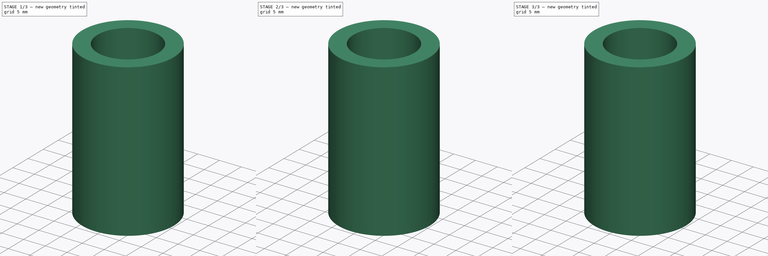
[diagram: build sequence overview — one tinted view per stage of 3, left to right]
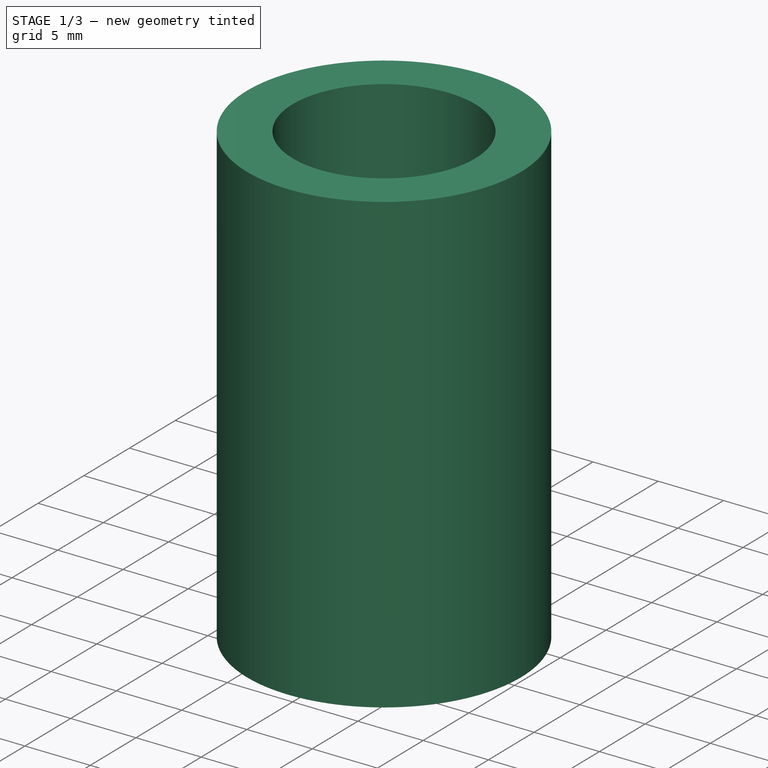
[diagram: stage 1 of 3 — iso view after this stage's code; geometry added in this stage tinted green]
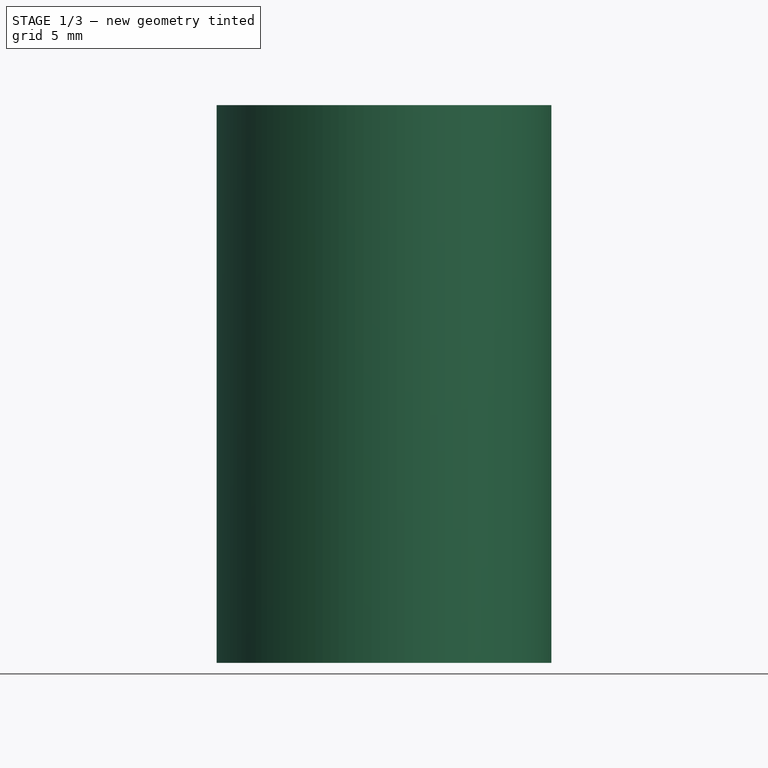
[diagram: stage 1 of 3 — front view after this stage's code; geometry added in this stage tinted green]
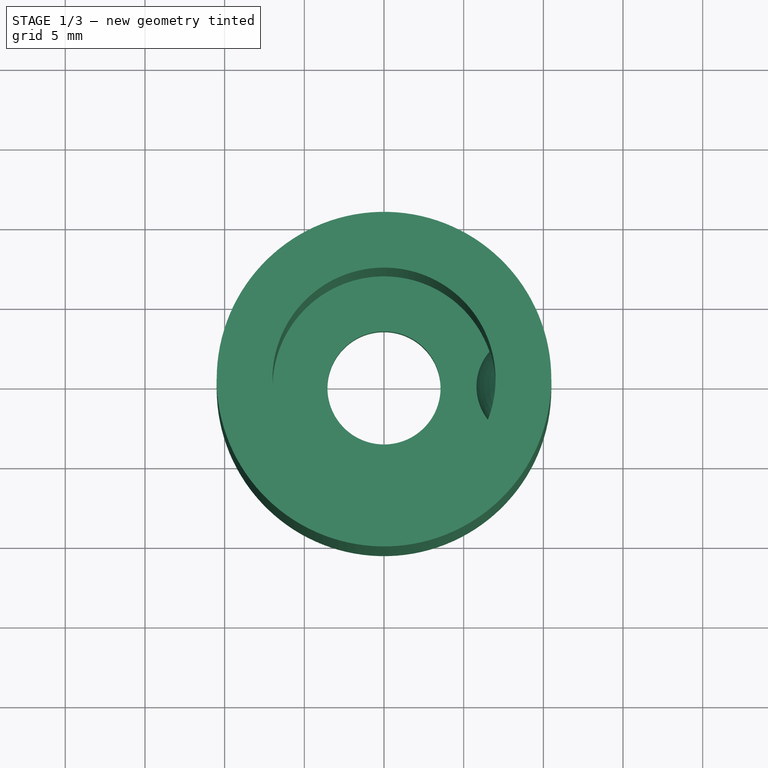
[diagram: stage 1 of 3 — top view after this stage's code; geometry added in this stage tinted green]
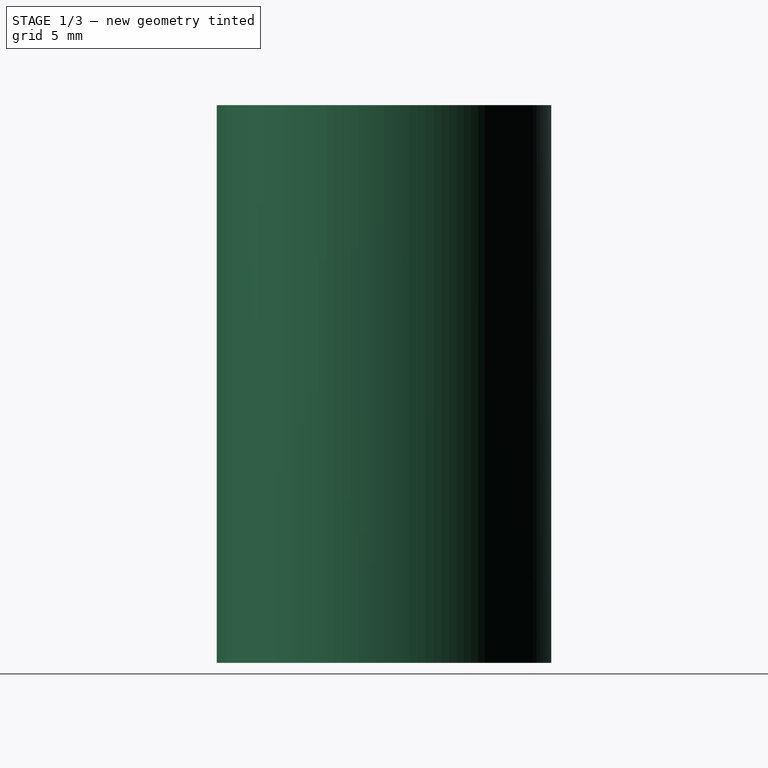
[diagram: stage 1 of 3 — right view after this stage's code; geometry added in this stage tinted green]
FCSTD DOCUMENT  (FreeCAD 0.19R)
Label: Post_sleeve_base
License: All rights reserved
LicenseURL: http://en.wikipedia.org/wiki/All_rights_reserved
objects: PartDesign::Revolution×7, PartDesign::Body×7, Sketcher::SketchObject×4, PartDesign::Hole×1
note: 27 computed .brp shape members not serialized (recipe doc carries the construction recipe); baked Part::Feature solids carry a one-line shape summary decoded from their .brp

FEATURE [Sketcher::SketchObject] Sketch  label="sleeve_body_sketch"
  FullyConstrained = true
  MapMode = 5
  Placement = pos=(0,0,0) rot=(1,0,0;1.5708rad)
  Support = -> [XZ_Plane]
  sketch-geometry (6):
    g0: LineSegment StartX=0 StartY=0 StartZ=0 EndX=10.5 EndY=0 EndZ=0
    g1: LineSegment StartX=10.5 StartY=0 StartZ=0 EndX=10.5 EndY=35 EndZ=0
    g2: LineSegment StartX=10.5 StartY=35 StartZ=0 EndX=7 EndY=35 EndZ=0
    g3: LineSegment StartX=7 StartY=35 StartZ=0 EndX=7 EndY=3.5 EndZ=0
    g4: LineSegment StartX=7 StartY=3.5 StartZ=0 EndX=0 EndY=3.5 EndZ=0
    g5: LineSegment StartX=0 StartY=3.5 StartZ=0 EndX=0 EndY=0 EndZ=0
  constraints (17):
    c: Coincident(g-1,g0)
    c: PointOnObject(g0,g-1)
    c: Coincident(g0,g1)
    c: Vertical(g1)
    c: Coincident(g1,g2)
    c: Horizontal(g2)
    c: Coincident(g2,g3)
    c: Vertical(g3)
    c: Coincident(g3,g4)
    c: Horizontal(g4)
    c: Coincident(g4,g5)
    c: Coincident(g5,g0)
    c: Vertical(g5)
    c: Distance(g5) = 3.5
    c: Distance(g4) = 7
    c: Distance(g2) = 3.5
    c: Distance(g1) = 35
FEATURE [PartDesign::Revolution] Revolution  label="sleeve_body"
  Angle = 360
  Axis = (-3e-16,3e-16,1)
  Base = (0,0,0)
  Placement = pos=(0,0,0) rot=(1,0,0;1.5708rad)
  Profile = -> Sketch
  ReferenceAxis = -> Z_Axis
  Reversed = true
FEATURE [PartDesign::Body] Body005  label="touch_point_11"
  Group = -> [Revolution005]
  Origin = -> Origin005
  Placement = pos=(0,0,22.4) rot=(0,0,1;2.0944rad)
  Tip = -> Revolution005
FEATURE [PartDesign::Revolution] Revolution006  label="touch_point005"
  Angle = 120
  Axis = (0,-1.8e-15,7.97846)
  Base = (9.13913,0,0)
  Midplane = true
  Placement = pos=(0,0,0) rot=(1,0,0;1.5708rad)
  Profile = -> Sketch003
  ReferenceAxis = -> Sketch003 [Axis1]
FEATURE [PartDesign::Body] Body006  label="touch_point_12"
  Group = -> [Revolution006]
  Origin = -> Origin006
  Placement = pos=(0,0,22.4) rot=(0,0,1;4.18879rad)
  Tip = -> Revolution006
FEATURE [Sketcher::SketchObject] Sketch004  label="1on4_hole_sketch"
  FullyConstrained = true
  MapMode = 5
  Support = -> [XY_Plane]
  sketch-geometry (1):
    g0: Circle CenterX=0 CenterY=0 CenterZ=0 NormalX=0 NormalY=0 NormalZ=1 AngleXU=0 Radius=1
  constraints (2):
    c: Coincident(g0,g-1)
    c: Radius(g0) = 1
FEATURE [PartDesign::Hole] Hole  label="1on4_hole"
  BaseFeature = -> Revolution
  Depth = 25
  DepthType = 1
  Diameter = 7.1
  DrillForDepth = false
  DrillPoint = 1
  DrillPointAngle = 118
  HoleCutCountersinkAngle = 90
  HoleCutCustomValues = false
  HoleCutDepth = 0
  HoleCutDiameter = 0
  HoleCutType = 0
  ModelActualThread = false
  Placement = pos=(0,0,0) rot=(1,0,0;1.5708rad)
  Profile = -> Sketch004
  Reversed = true
  Tapered = false
  TaperedAngle = 90
  ThreadAngle = 0
  ThreadClass = 0
  ThreadCutOffInner = 0
  ThreadCutOffOuter = 0
  ThreadDirection = 0
  ThreadFit = 0
  ThreadPitch = 0
  ThreadSize = 10
  ThreadType = 4
  Threaded = false
FEATURE [PartDesign::Body] Body  label="sleeve"
  Group = -> [Sketch,Revolution,Sketch004,Hole]
  Origin = -> Origin
  Tip = -> Hole
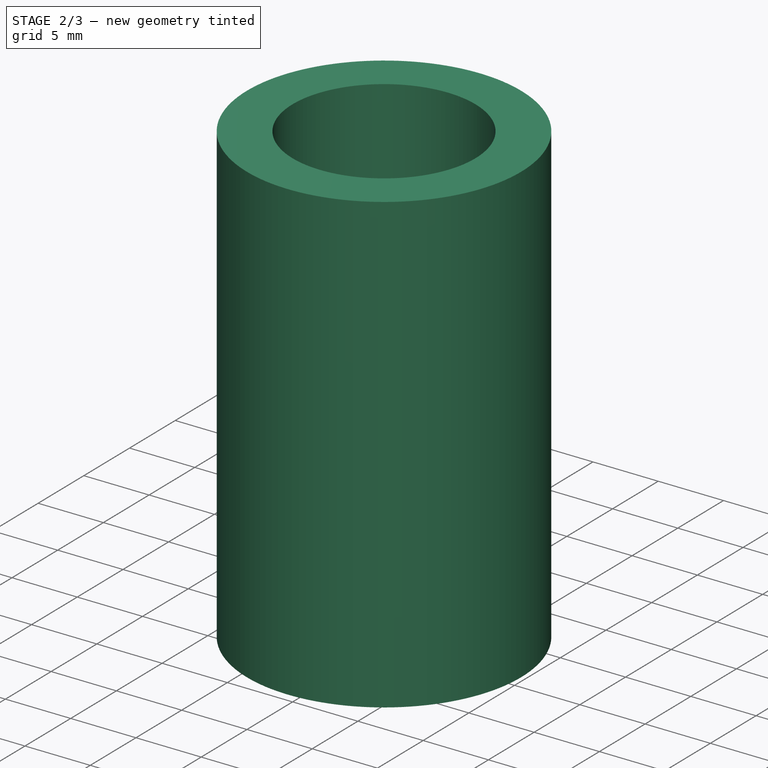
[diagram: stage 2 of 3 — iso view after this stage's code; geometry added in this stage tinted green]
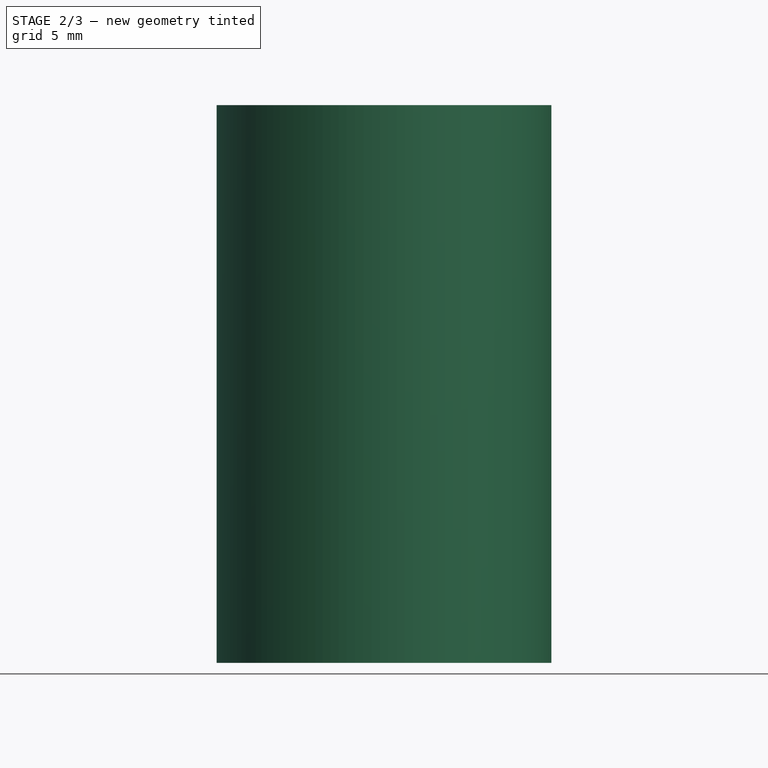
[diagram: stage 2 of 3 — front view after this stage's code; geometry added in this stage tinted green]
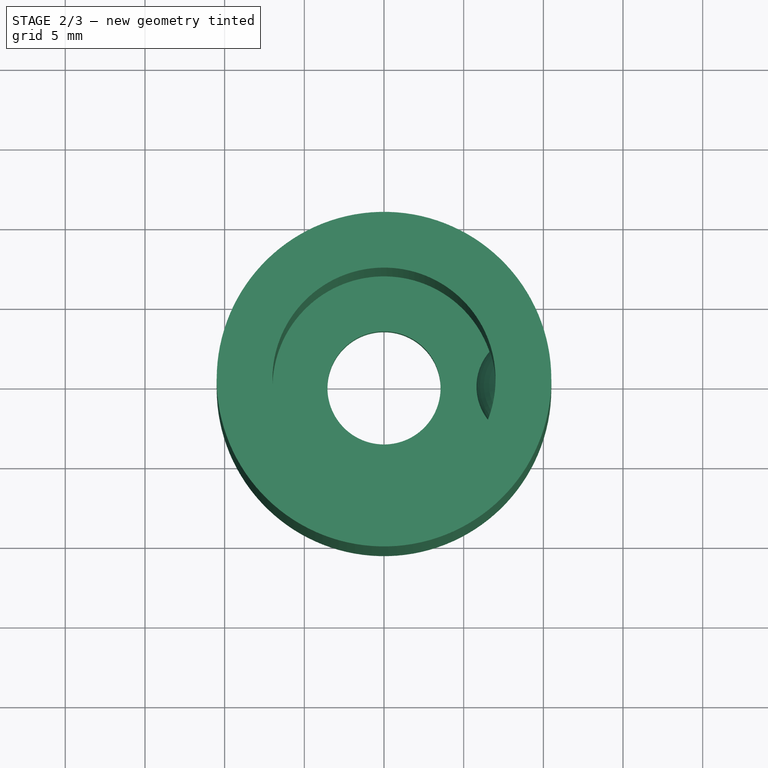
[diagram: stage 2 of 3 — top view after this stage's code; geometry added in this stage tinted green]
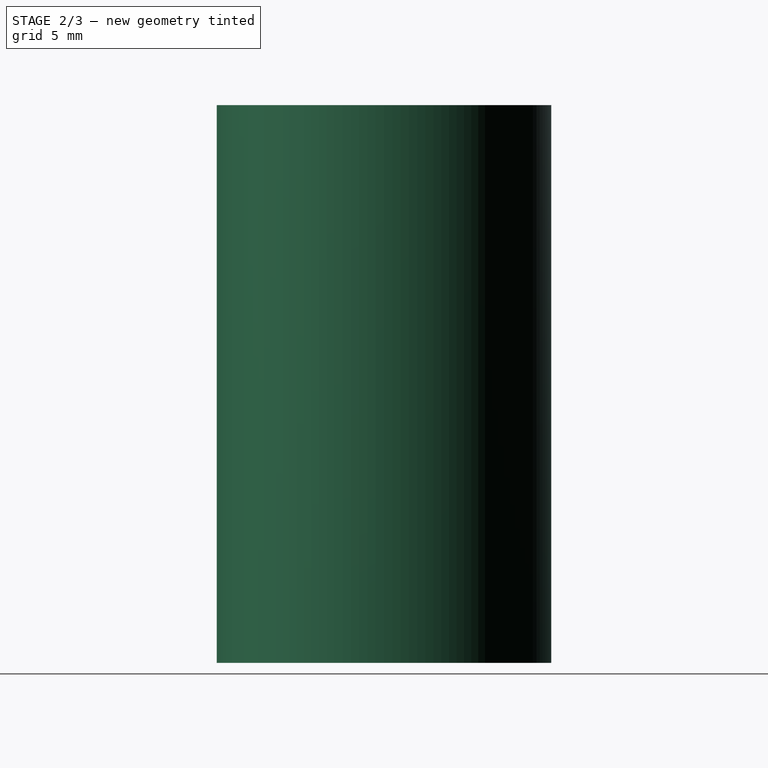
[diagram: stage 2 of 3 — right view after this stage's code; geometry added in this stage tinted green]
FEATURE [PartDesign::Body] Body003  label="touch_point_02"
  Group = -> [Revolution003]
  Origin = -> Origin003
  Placement = pos=(0,0,0) rot=(0,0,1;4.18879rad)
  Tip = -> Revolution003
FEATURE [PartDesign::Revolution] Revolution004  label="touch_point003"
  Angle = 120
  Axis = (0,-1.8e-15,7.97846)
  Base = (9.13913,0,0)
  Midplane = true
  Placement = pos=(0,0,0) rot=(1,0,0;1.5708rad)
  Profile = -> Sketch003
  ReferenceAxis = -> Sketch003 [Axis1]
FEATURE [PartDesign::Body] Body004  label="touch_point_10"
  Group = -> [Revolution004]
  Origin = -> Origin004
  Placement = pos=(0,0,22.4) rot=(0,0,1;0rad)
  Tip = -> Revolution004
FEATURE [PartDesign::Revolution] Revolution005  label="touch_point004"
  Angle = 120
  Axis = (0,-1.8e-15,7.97846)
  Base = (9.13913,0,0)
  Midplane = true
  Placement = pos=(0,0,0) rot=(1,0,0;1.5708rad)
  Profile = -> Sketch003
  ReferenceAxis = -> Sketch003 [Axis1]
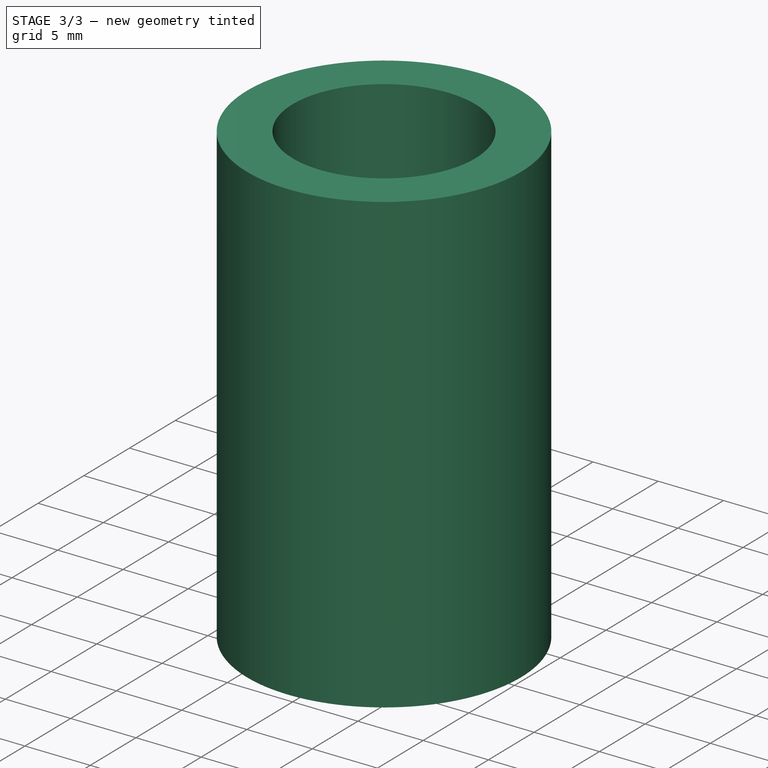
[diagram: stage 3 of 3 — iso view after this stage's code; geometry added in this stage tinted green]
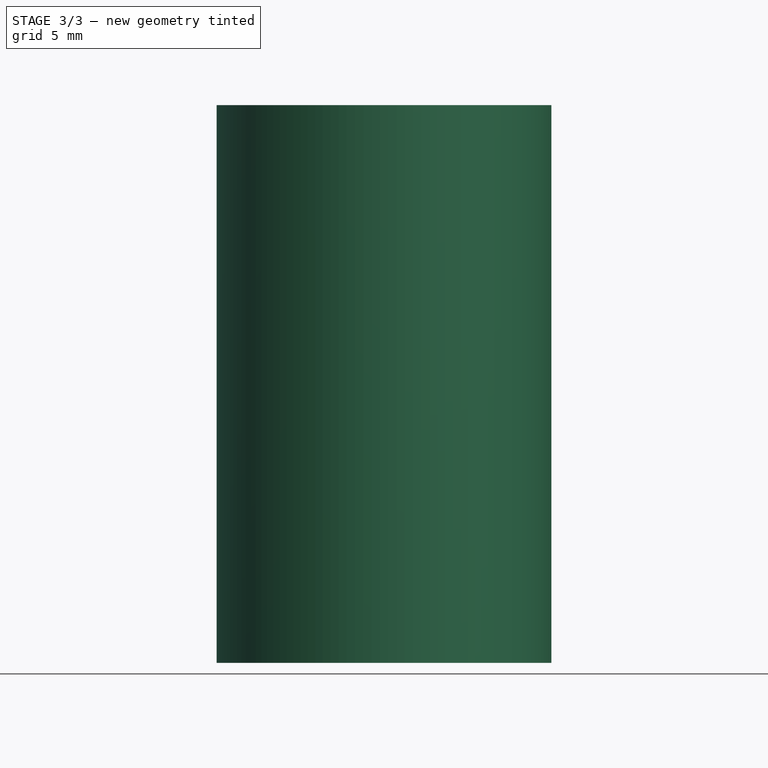
[diagram: stage 3 of 3 — front view after this stage's code; geometry added in this stage tinted green]
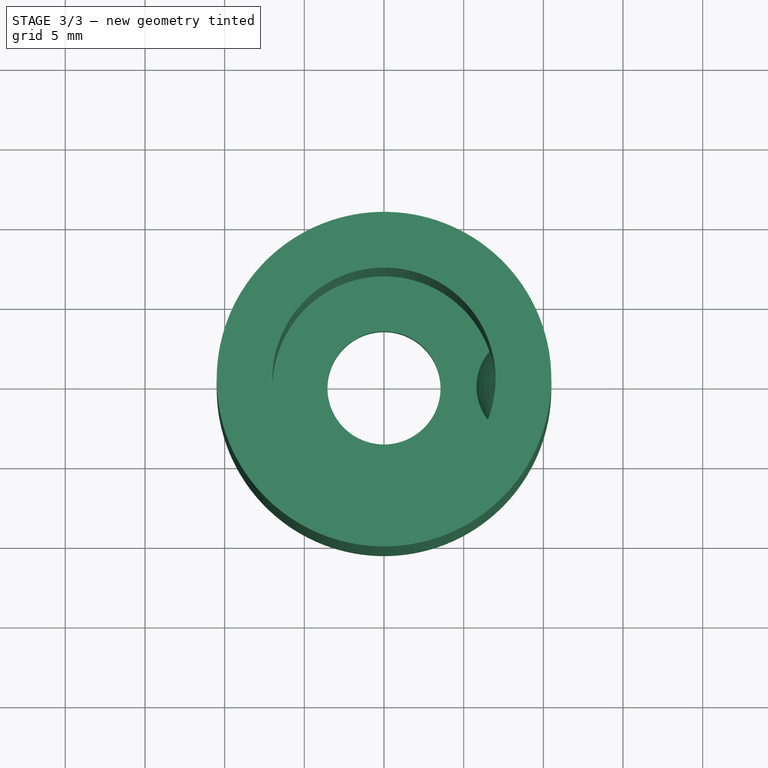
[diagram: stage 3 of 3 — top view after this stage's code; geometry added in this stage tinted green]
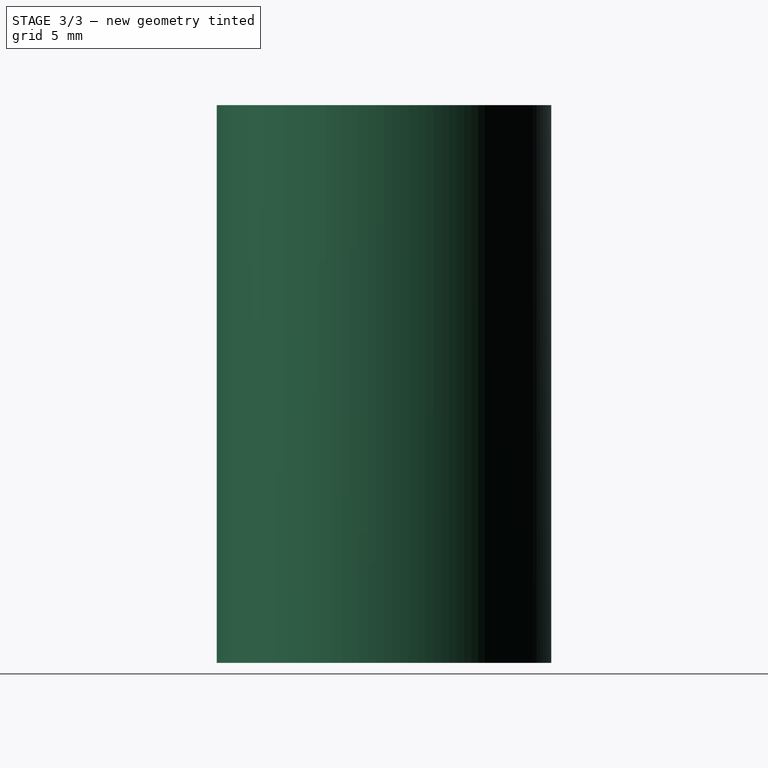
[diagram: stage 3 of 3 — right view after this stage's code; geometry added in this stage tinted green]
FEATURE [Sketcher::SketchObject] Sketch002  label="touch_point_rot_helper_sketch"
  ExternalGeometry = -> [Revolution]
  FullyConstrained = true
  MapMode = 5
  Support = -> [XY_Plane]
  sketch-geometry (4):
    g0: ArcOfCircle CenterX=9.13913 CenterY=0 CenterZ=0 NormalX=0 NormalY=0 NormalZ=1 AngleXU=0 Radius=3.33913 StartAngle=3.14159 EndAngle=3.86684
    g1: LineSegment StartX=0 StartY=0 StartZ=0 EndX=6.64034 EndY=-2.21492 EndZ=0
    g2: LineSegment StartX=6.64034 StartY=-2.21492 StartZ=0 EndX=9.13913 EndY=0 EndZ=0
    g3: LineSegment StartX=5.8 StartY=-2.63e-14 StartZ=0 EndX=0 EndY=-2.63e-14 EndZ=0
  constraints (11):
    c: PointOnObject(g0,g-1)
    c: PointOnObject(g0,g-3)
    c: Coincident(g1,g-1)
    c: Coincident(g1,g0)
    c: Coincident(g2,g0)
    c: Coincident(g2,g0)
    c: Angle(g2,g1) = 2.0944
    c: Coincident(g3,g0)
    c: Coincident(g3,g-1)
    c: Horizontal(g3)
    c: Distance(g3) = 5.8
FEATURE [Sketcher::SketchObject] Sketch003  label="touch_point_sketch"
  ExternalGeometry = -> [Sketch002,Revolution]
  FullyConstrained = true
  MapMode = 5
  Placement = pos=(0,0,0) rot=(1,0,0;1.5708rad)
  Support = -> [XZ_Plane001]
  sketch-geometry (5):
    g0: ArcOfCircle CenterX=14.7569 CenterY=7.97846 CenterZ=0 NormalX=0 NormalY=0 NormalZ=1 AngleXU=0 Radius=8.95692 StartAngle=2.61799 EndAngle=3.66519
    g1: GeomPoint X=5.8 Y=7.97846 Z=0
    g2: LineSegment StartX=7 StartY=12.4569 StartZ=0 EndX=7 EndY=3.5 EndZ=0
    g3: LineSegment StartX=14.7569 StartY=7.97846 StartZ=0 EndX=7 EndY=3.5 EndZ=0
    g4: LineSegment StartX=9.13913 StartY=0 StartZ=0 EndX=9.13913 EndY=7.97846 EndZ=0
  constraints (13):
    c: Coincident(g0,g-6)
    c: PointOnObject(g0,g-5)
    c: PointOnObject(g1,g0)
    c: Horizontal(g1,g0)
    c: Vertical(g1,g-3)
    c: Coincident(g2,g0)
    c: Coincident(g2,g0)
    c: Coincident(g3,g0)
    c: Coincident(g3,g0)
    c: Angle(g3,g2) = 1.0472
    c: Coincident(g4,g-4)
    c: Vertical(g4)
    c: Horizontal(g4,g0)
FEATURE [PartDesign::Revolution] Revolution001  label="touch_point"
  Angle = 120
  Axis = (0,-1.8e-15,7.97846)
  Base = (9.13913,0,0)
  Midplane = true
  Placement = pos=(0,0,0) rot=(1,0,0;1.5708rad)
  Profile = -> Sketch003
  ReferenceAxis = -> Sketch003 [Axis1]
FEATURE [PartDesign::Body] Body001  label="touch_point_00"
  Group = -> [Sketch003,Revolution001]
  Origin = -> Origin001
  Tip = -> Revolution001
FEATURE [PartDesign::Revolution] Revolution002  label="touch_point001"
  Angle = 120
  Axis = (0,-1.8e-15,7.97846)
  Base = (9.13913,0,0)
  Midplane = true
  Placement = pos=(0,0,0) rot=(1,0,0;1.5708rad)
  Profile = -> Sketch003
  ReferenceAxis = -> Sketch003 [Axis1]
FEATURE [PartDesign::Body] Body002  label="touch_point_01"
  Group = -> [Revolution002]
  Origin = -> Origin002
  Placement = pos=(0,0,0) rot=(0,0,1;2.0944rad)
  Tip = -> Revolution002
FEATURE [PartDesign::Revolution] Revolution003  label="touch_point002"
  Angle = 120
  Axis = (0,-1.8e-15,7.97846)
  Base = (9.13913,0,0)
  Midplane = true
  Placement = pos=(0,0,0) rot=(1,0,0;1.5708rad)
  Profile = -> Sketch003
  ReferenceAxis = -> Sketch003 [Axis1]
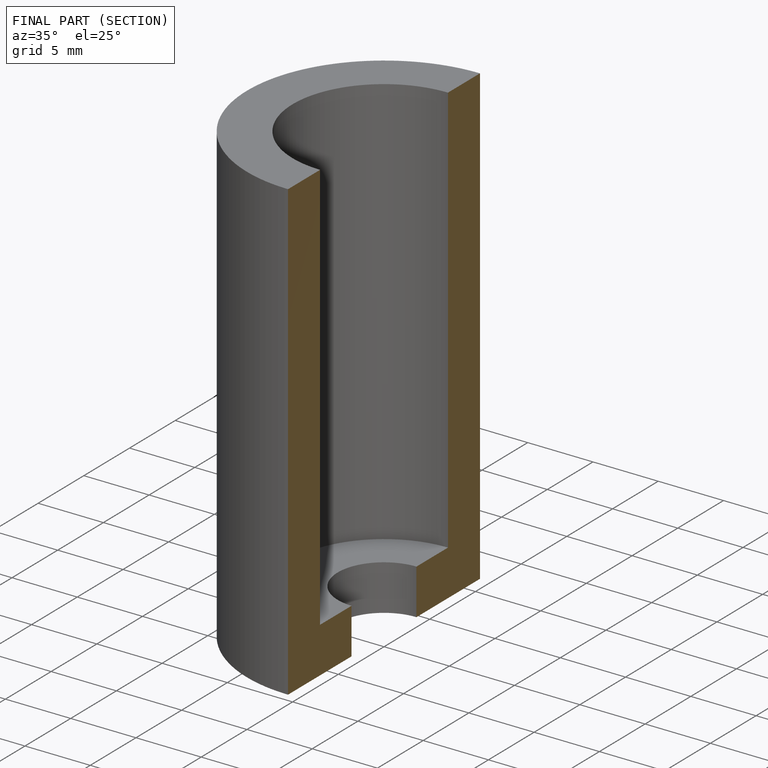
[diagram: finished part — half-section view (interior)]
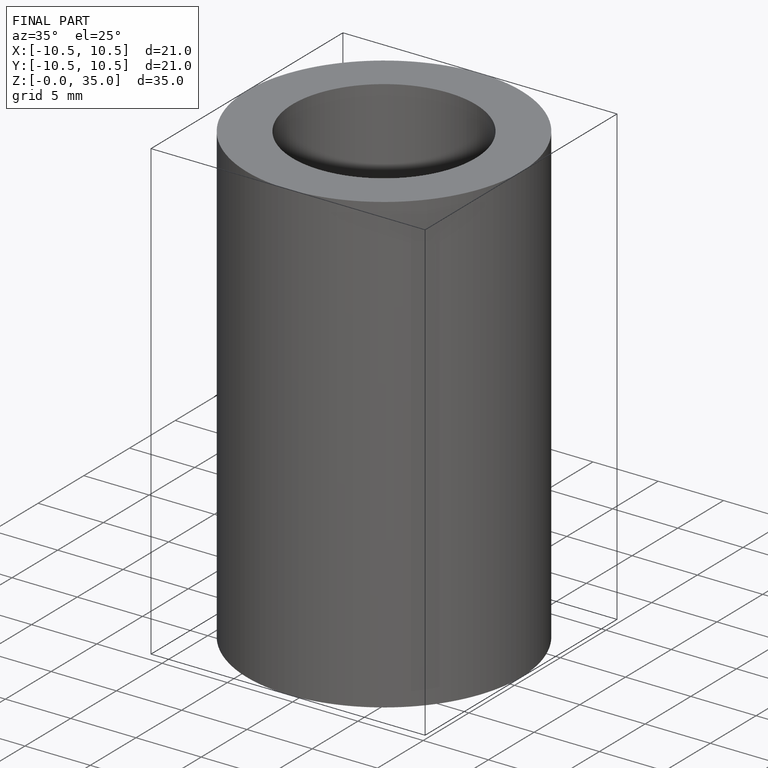
[diagram: finished part — iso view with bounding-box wireframe]
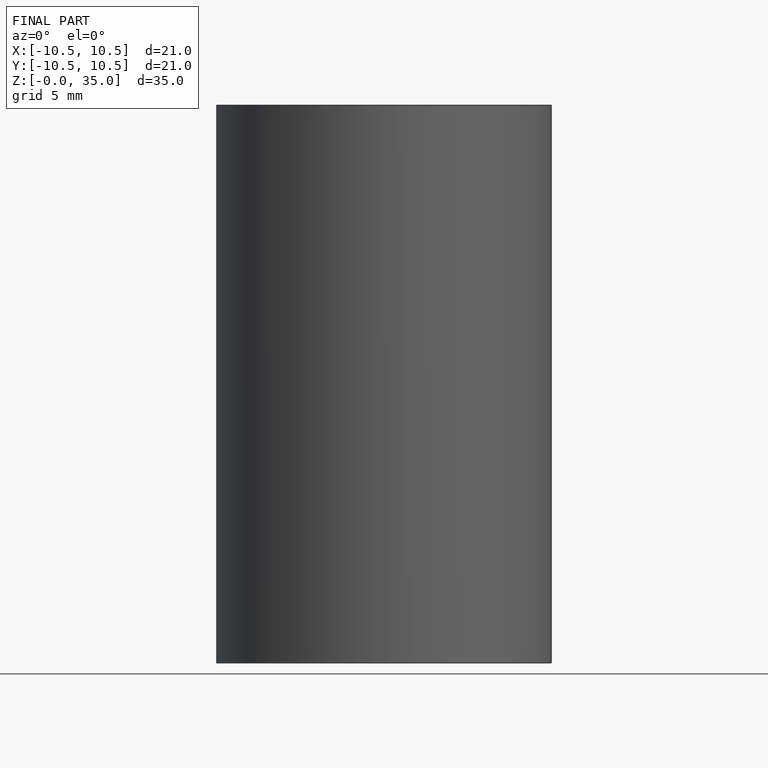
[diagram: finished part — front view with bounding-box wireframe]
